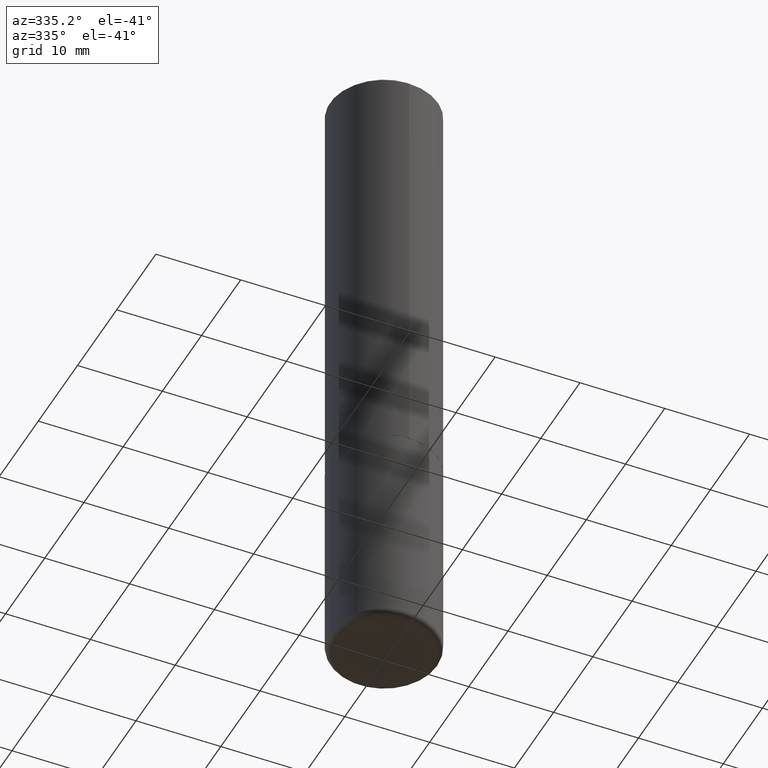
[diagram: clean part render]
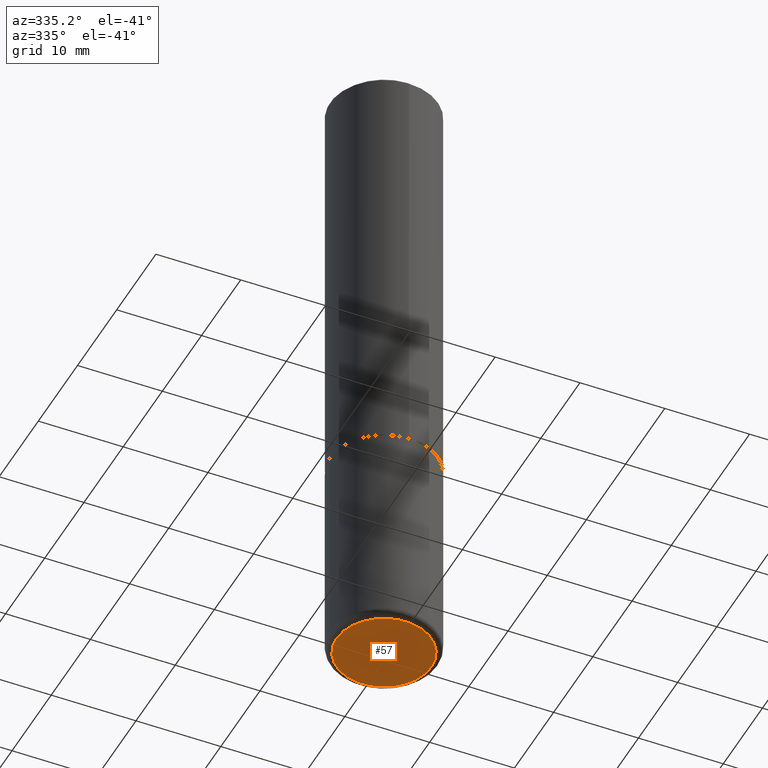
[diagram: same view with one face highlighted and labeled with its STEP entity id]
A machine part, auxiliary view. The second image highlights one B-rep face of the part: STEP entity #57.
In plain terms, the highlighted planar face has unit normal (0, -0, -1).
Its self-contained STEP definition (entity closure, byte-faithful):
#8 = DIRECTION ( 'NONE',  ( 2.438088387897960049E-29, -3.491481338843145188E-15, -1.000000000000000000 ) ) ;
#51 = AXIS2_PLACEMENT_3D ( 'NONE', #361, #8, #231 ) ;
#57 = ADVANCED_FACE ( 'NONE', ( #170 ), #110, .T. ) ;
#58 = CARTESIAN_POINT ( 'NONE',  ( -0.2200000000000000011, -8.752296367410555115E-15, -2.999999999999999556 ) ) ;
#67 = CARTESIAN_POINT ( 'NONE',  ( 0.2200000000000000011, -1.201069580562041471E-14, -2.999999999999999556 ) ) ;
#85 = DIRECTION ( 'NONE',  ( -2.445468806185136597E-29, 3.491481338843145583E-15, 1.000000000000000000 ) ) ;
#110 = PLANE ( 'NONE',  #51 ) ;
#112 = AXIS2_PLACEMENT_3D ( 'NONE', #177, #394, #154 ) ;
#154 = DIRECTION ( 'NONE',  ( 1.000000000000000000, -6.982962677686270655E-15, 0.000000000000000000 ) ) ;
#165 = EDGE_CURVE ( 'NONE', #256, #200, #306, .T. ) ;
#170 = FACE_OUTER_BOUND ( 'NONE', #192, .T. ) ;
#176 = DIRECTION ( 'NONE',  ( 1.000000000000000000, -6.982962677686270655E-15, 0.000000000000000000 ) ) ;
#177 = CARTESIAN_POINT ( 'NONE',  ( 7.336406418555408669E-29, -1.047444401652943478E-14, -2.999999999999999556 ) ) ;
#192 = EDGE_LOOP ( 'NONE', ( #346, #215 ) ) ;
#200 = VERTEX_POINT ( 'NONE', #58 ) ;
#215 = ORIENTED_EDGE ( 'NONE', *, *, #245, .F. ) ;
#231 = DIRECTION ( 'NONE',  ( -1.000000000000000000, 6.982962677686265922E-15, -4.876176775795935793E-29 ) ) ;
#245 = EDGE_CURVE ( 'NONE', #200, #256, #314, .T. ) ;
#256 = VERTEX_POINT ( 'NONE', #67 ) ;
#260 = AXIS2_PLACEMENT_3D ( 'NONE', #368, #85, #176 ) ;
#306 = CIRCLE ( 'NONE', #260, 0.2200000000000000011 ) ;
#314 = CIRCLE ( 'NONE', #112, 0.2200000000000000011 ) ;
#346 = ORIENTED_EDGE ( 'NONE', *, *, #165, .F. ) ;
#361 = CARTESIAN_POINT ( 'NONE',  ( 1.253905894061077399E-28, -3.023949488354168584E-15, -2.999999999999999556 ) ) ;
#368 = CARTESIAN_POINT ( 'NONE',  ( 7.336406418555408669E-29, -1.047444401652943478E-14, -2.999999999999999556 ) ) ;
#394 = DIRECTION ( 'NONE',  ( -2.445468806185136597E-29, 3.491481338843145583E-15, 1.000000000000000000 ) ) ;